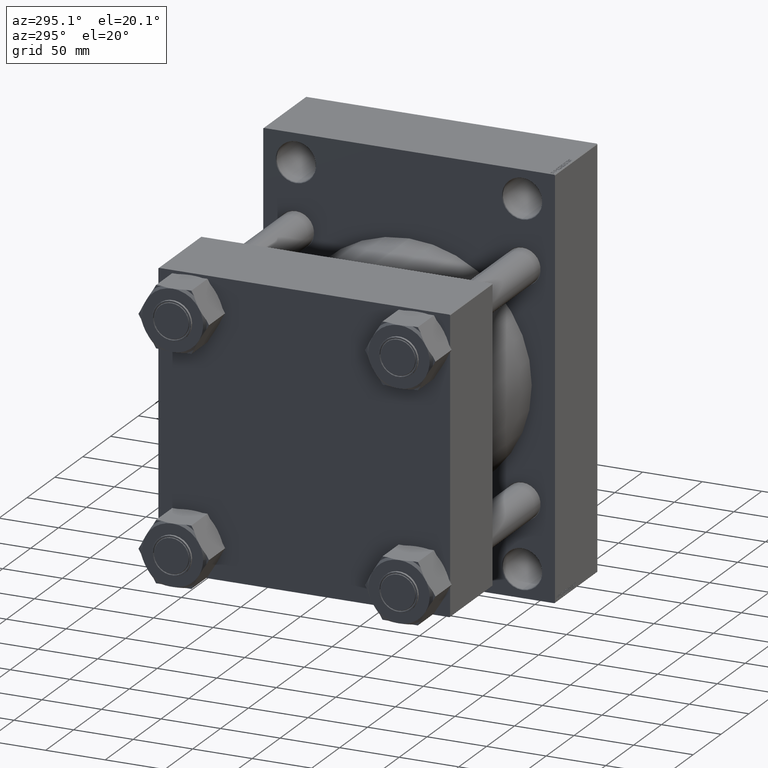
[diagram: clean part render]
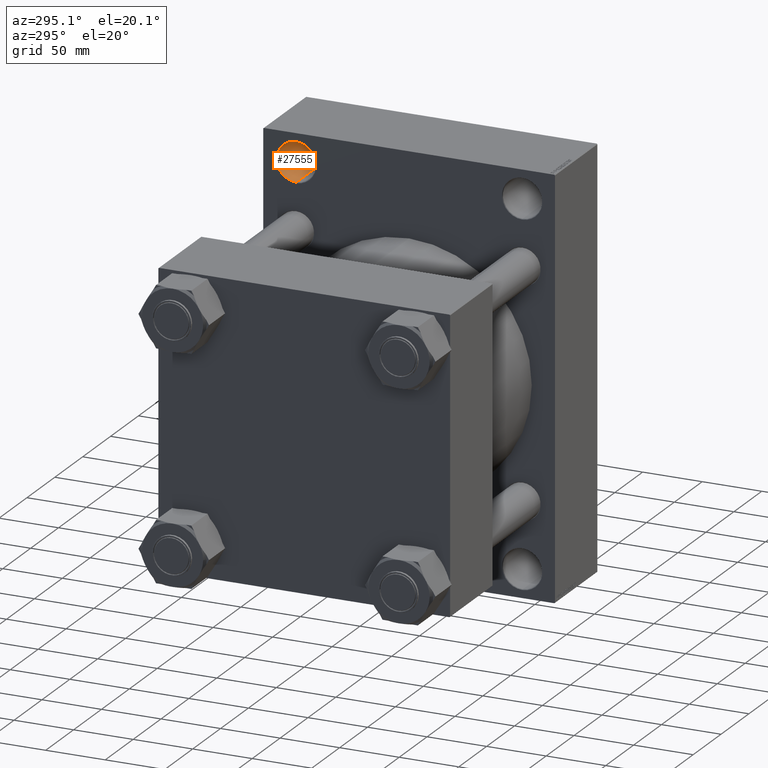
[diagram: same view with one face highlighted and labeled with its STEP entity id]
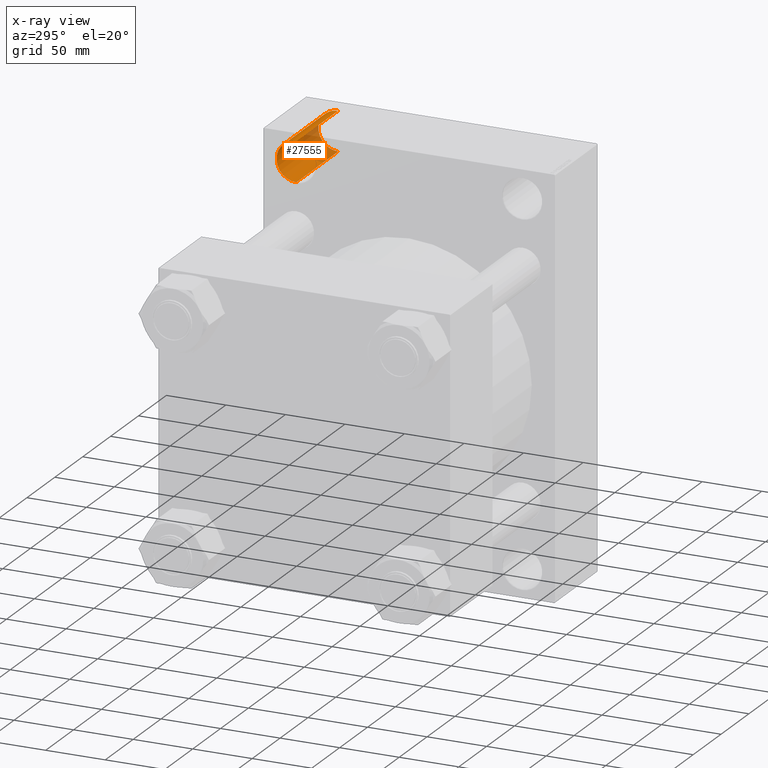
[diagram: x-ray of the same camera — body ghosted, the highlighted face saturated]
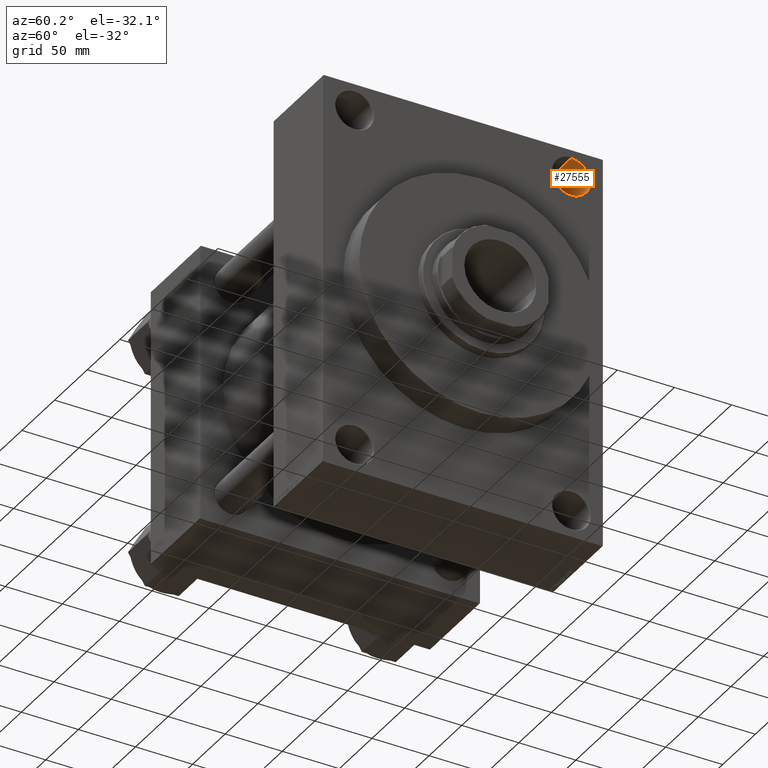
[diagram: same view with one face highlighted and labeled with its STEP entity id]
A machine part, auxiliary view. The second image highlights one B-rep face of the part: STEP entity #27555.
The next image is the same camera in x-ray: the body ghosted, the highlighted face saturated — about 28% of this face is hidden behind the body in this view.
A second angle (auxiliary view) of the same face is appended — the face is thin or edge-on in the first view.
In plain terms, the highlighted cylindrical surface (edge-blend (fillet) strip) has radius 16.5 mm, axis along (1, 0, 0).
Its self-contained STEP definition (entity closure, byte-faithful):
#209 = DIRECTION ( 'NONE',  ( 1.000000000000000000, -0.000000000000000000, -0.000000000000000000 ) ) ;
#2187 = CIRCLE ( 'NONE', #35226, 16.49999999999998579 ) ;
#2598 = VERTEX_POINT ( 'NONE', #5098 ) ;
#3570 = CARTESIAN_POINT ( 'NONE',  ( 141.3309524416877991, 95.00000000000000000, 166.4999999999999716 ) ) ;
#3631 = VECTOR ( 'NONE', #209, 1000.000000000000000 ) ;
#5000 = VECTOR ( 'NONE', #31020, 1000.000000000000000 ) ;
#5036 = DIRECTION ( 'NONE',  ( 0.000000000000000000, 0.000000000000000000, -1.000000000000000000 ) ) ;
#5098 = CARTESIAN_POINT ( 'NONE',  ( 188.4999999999998579, 95.00000000000000000, 133.5000000000000000 ) ) ;
#7145 = VERTEX_POINT ( 'NONE', #40875 ) ;
#7814 = CARTESIAN_POINT ( 'NONE',  ( 188.4999999999998579, 95.00000000000000000, 166.4999999999999716 ) ) ;
#9108 = CARTESIAN_POINT ( 'NONE',  ( 141.3309524416877991, 95.00000000000000000, 133.5000000000000000 ) ) ;
#9498 = EDGE_CURVE ( 'NONE', #2598, #30368, #15383, .T. ) ;
#10566 = CARTESIAN_POINT ( 'NONE',  ( 188.4999999999998579, 95.00000000000000000, 150.0000000000000000 ) ) ;
#13473 = CIRCLE ( 'NONE', #45002, 16.49999999999998579 ) ;
#15244 = ORIENTED_EDGE ( 'NONE', *, *, #15505, .T. ) ;
#15383 = LINE ( 'NONE', #9108, #5000 ) ;
#15505 = EDGE_CURVE ( 'NONE', #30368, #7145, #13473, .T. ) ;
#15916 = DIRECTION ( 'NONE',  ( 0.000000000000000000, 0.000000000000000000, 1.000000000000000000 ) ) ;
#18276 = VERTEX_POINT ( 'NONE', #7814 ) ;
#20652 = EDGE_CURVE ( 'NONE', #18276, #7145, #28855, .T. ) ;
#26767 = EDGE_CURVE ( 'NONE', #18276, #2598, #2187, .T. ) ;
#27191 = CARTESIAN_POINT ( 'NONE',  ( 141.3309524416877991, 95.00000000000000000, 150.0000000000000000 ) ) ;
#27225 = CARTESIAN_POINT ( 'NONE',  ( 263.4999999999998863, 95.00000000000000000, 150.0000000000000000 ) ) ;
#27555 = ADVANCED_FACE ( 'NONE', ( #30577 ), #45263, .F. ) ;
#27643 = ORIENTED_EDGE ( 'NONE', *, *, #26767, .T. ) ;
#28855 = LINE ( 'NONE', #3570, #3631 ) ;
#29291 = ORIENTED_EDGE ( 'NONE', *, *, #9498, .T. ) ;
#30368 = VERTEX_POINT ( 'NONE', #38724 ) ;
#30577 = FACE_OUTER_BOUND ( 'NONE', #42726, .T. ) ;
#31020 = DIRECTION ( 'NONE',  ( 1.000000000000000000, -0.000000000000000000, -0.000000000000000000 ) ) ;
#31072 = DIRECTION ( 'NONE',  ( 1.000000000000000000, 0.000000000000000000, 0.000000000000000000 ) ) ;
#32717 = DIRECTION ( 'NONE',  ( 0.000000000000000000, 0.000000000000000000, 1.000000000000000000 ) ) ;
#32971 = AXIS2_PLACEMENT_3D ( 'NONE', #27191, #38039, #5036 ) ;
#35226 = AXIS2_PLACEMENT_3D ( 'NONE', #10566, #43068, #32717 ) ;
#37179 = ORIENTED_EDGE ( 'NONE', *, *, #20652, .F. ) ;
#38039 = DIRECTION ( 'NONE',  ( 1.000000000000000000, -0.000000000000000000, -0.000000000000000000 ) ) ;
#38724 = CARTESIAN_POINT ( 'NONE',  ( 263.4999999999998863, 95.00000000000000000, 133.5000000000000000 ) ) ;
#40875 = CARTESIAN_POINT ( 'NONE',  ( 263.4999999999998863, 95.00000000000000000, 166.4999999999999716 ) ) ;
#42726 = EDGE_LOOP ( 'NONE', ( #37179, #27643, #29291, #15244 ) ) ;
#43068 = DIRECTION ( 'NONE',  ( -1.000000000000000000, -0.000000000000000000, -0.000000000000000000 ) ) ;
#45002 = AXIS2_PLACEMENT_3D ( 'NONE', #27225, #31072, #15916 ) ;
#45263 = CYLINDRICAL_SURFACE ( 'NONE', #32971, 16.49999999999998579 ) ;